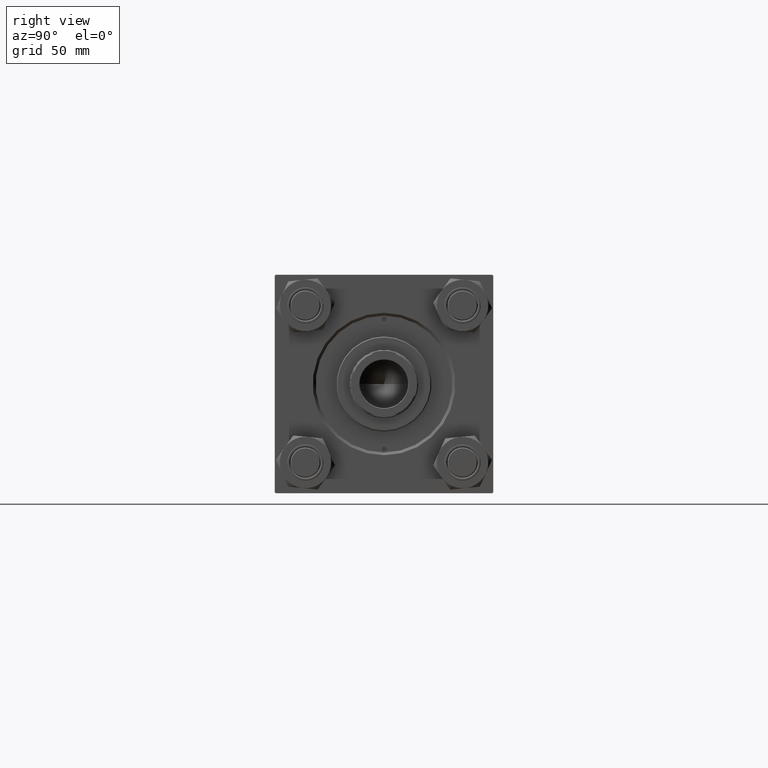
[diagram: clean part render]
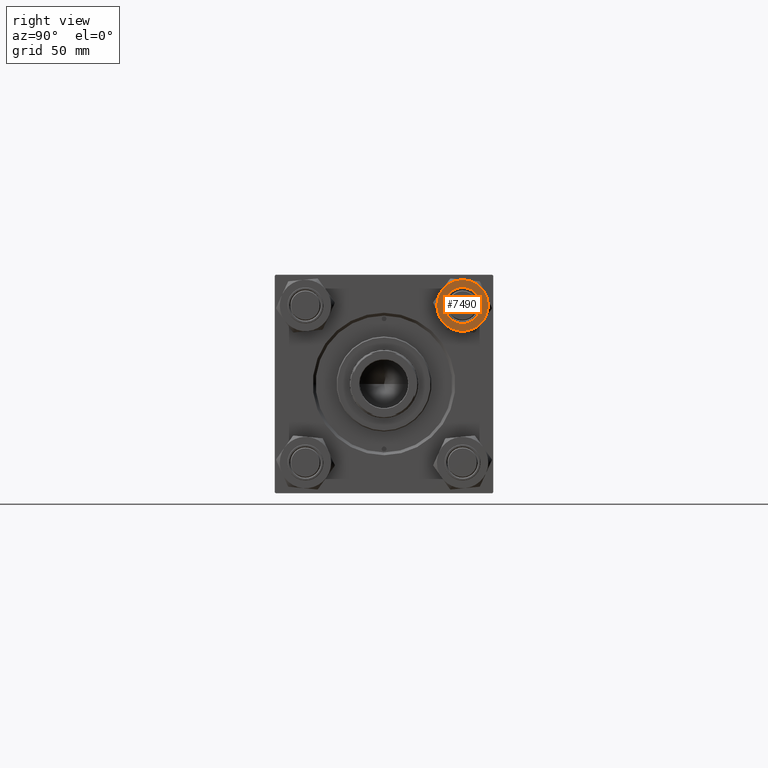
[diagram: same view with one face highlighted and labeled with its STEP entity id]
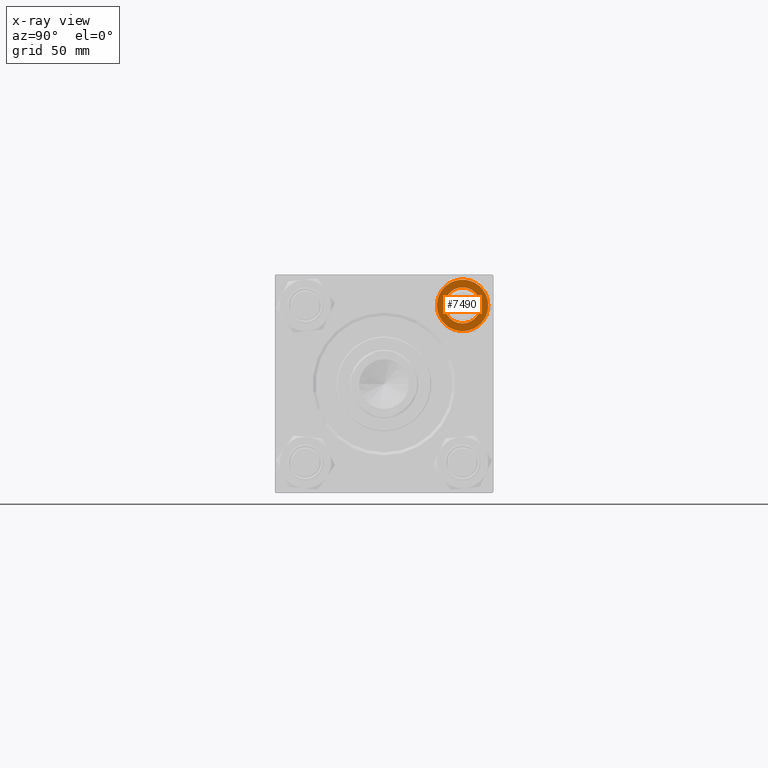
[diagram: x-ray of the same camera — body ghosted, the highlighted face saturated]
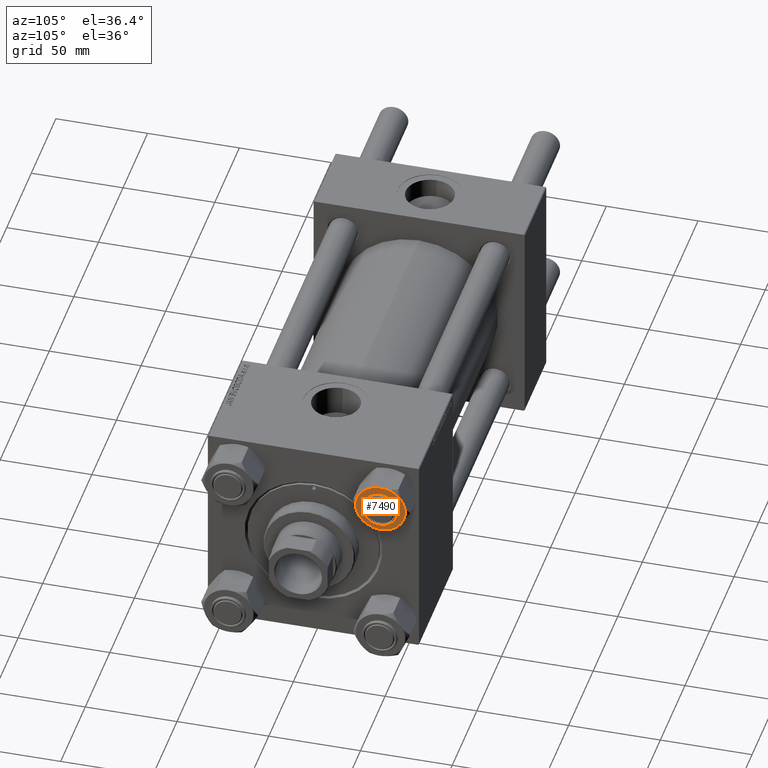
[diagram: same view with one face highlighted and labeled with its STEP entity id]
A machine part, right view. The second image highlights one B-rep face of the part: STEP entity #7490.
The next image is the same camera in x-ray: the body ghosted, the highlighted face saturated — about 0% of this face is hidden behind the body in this view.
A second angle (auxiliary view) of the same face is appended — the face is thin or edge-on in the first view.
In plain terms, the highlighted planar face has unit normal (-1, 0, -0).
Its self-contained STEP definition (entity closure, byte-faithful):
#317 = EDGE_CURVE ( 'NONE', #14946, #14562, #49323, .T. ) ;
#451 = AXIS2_PLACEMENT_3D ( 'NONE', #11594, #46220, #45963 ) ;
#1046 = DIRECTION ( 'NONE',  ( 0.000000000000000000, 0.000000000000000000, 1.000000000000000000 ) ) ;
#1152 = ORIENTED_EDGE ( 'NONE', *, *, #31155, .F. ) ;
#1541 = CIRCLE ( 'NONE', #38969, 9.500000000000000000 ) ;
#2207 = VERTEX_POINT ( 'NONE', #48112 ) ;
#2297 = ORIENTED_EDGE ( 'NONE', *, *, #47593, .F. ) ;
#2893 = AXIS2_PLACEMENT_3D ( 'NONE', #50380, #41987, #4040 ) ;
#3056 = FACE_BOUND ( 'NONE', #49870, .T. ) ;
#4006 = CARTESIAN_POINT ( 'NONE',  ( 13.52731680711293727, 0.000000000000000000, 0.000000000000000000 ) ) ;
#4040 = DIRECTION ( 'NONE',  ( -1.000000000000000000, 0.000000000000000000, 0.000000000000000000 ) ) ;
#4531 = AXIS2_PLACEMENT_3D ( 'NONE', #11369, #26911, #42443 ) ;
#4566 = AXIS2_PLACEMENT_3D ( 'NONE', #26529, #11250, #45365 ) ;
#5164 = VERTEX_POINT ( 'NONE', #13362 ) ;
#6111 = CIRCLE ( 'NONE', #2893, 13.52731680711293549 ) ;
#7490 = ADVANCED_FACE ( 'NONE', ( #3056, #45828 ), #10436, .F. ) ;
#8212 = AXIS2_PLACEMENT_3D ( 'NONE', #18343, #33404, #25489 ) ;
#10100 = VERTEX_POINT ( 'NONE', #35753 ) ;
#10436 = PLANE ( 'NONE',  #30047 ) ;
#11250 = DIRECTION ( 'NONE',  ( 0.000000000000000000, 0.000000000000000000, 1.000000000000000000 ) ) ;
#11300 = ORIENTED_EDGE ( 'NONE', *, *, #40762, .F. ) ;
#11369 = CARTESIAN_POINT ( 'NONE',  ( 0.000000000000000000, 0.000000000000000000, 0.000000000000000000 ) ) ;
#11594 = CARTESIAN_POINT ( 'NONE',  ( 0.000000000000000000, 0.000000000000000000, 0.000000000000000000 ) ) ;
#11861 = ORIENTED_EDGE ( 'NONE', *, *, #34453, .F. ) ;
#13362 = CARTESIAN_POINT ( 'NONE',  ( 9.500000000000000000, 1.163414459189985485E-15, 0.000000000000000000 ) ) ;
#14267 = DIRECTION ( 'NONE',  ( 0.000000000000000000, -0.000000000000000000, -1.000000000000000000 ) ) ;
#14562 = VERTEX_POINT ( 'NONE', #4006 ) ;
#14912 = ORIENTED_EDGE ( 'NONE', *, *, #32838, .T. ) ;
#14946 = VERTEX_POINT ( 'NONE', #23556 ) ;
#15394 = EDGE_CURVE ( 'NONE', #14562, #10100, #23674, .T. ) ;
#15980 = DIRECTION ( 'NONE',  ( 0.000000000000000000, -0.000000000000000000, -1.000000000000000000 ) ) ;
#17055 = VERTEX_POINT ( 'NONE', #42576 ) ;
#17076 = CARTESIAN_POINT ( 'NONE',  ( 0.000000000000000000, 0.000000000000000000, 0.000000000000000000 ) ) ;
#17827 = CARTESIAN_POINT ( 'NONE',  ( 0.000000000000000000, 0.000000000000000000, 0.000000000000000000 ) ) ;
#18343 = CARTESIAN_POINT ( 'NONE',  ( 0.000000000000000000, 0.000000000000000000, 0.000000000000000000 ) ) ;
#18756 = EDGE_CURVE ( 'NONE', #17055, #35805, #44073, .T. ) ;
#18850 = DIRECTION ( 'NONE',  ( 0.000000000000000000, 0.000000000000000000, -1.000000000000000000 ) ) ;
#20310 = EDGE_LOOP ( 'NONE', ( #1152, #11861, #44667, #11300, #34840, #34549, #14912 ) ) ;
#21744 = CARTESIAN_POINT ( 'NONE',  ( -11.71499999999999808, -6.763658403556473964, 0.000000000000000000 ) ) ;
#23472 = CARTESIAN_POINT ( 'NONE',  ( -11.71500000000000341, 6.763658403556464194, 0.000000000000000000 ) ) ;
#23556 = CARTESIAN_POINT ( 'NONE',  ( 11.71499999999999808, 6.763658403556471299, 0.000000000000000000 ) ) ;
#23674 = CIRCLE ( 'NONE', #8212, 13.52731680711293549 ) ;
#23968 = DIRECTION ( 'NONE',  ( 1.000000000000000000, 0.000000000000000000, 0.000000000000000000 ) ) ;
#24123 = DIRECTION ( 'NONE',  ( -1.000000000000000000, 0.000000000000000000, 0.000000000000000000 ) ) ;
#25489 = DIRECTION ( 'NONE',  ( -1.000000000000000000, 0.000000000000000000, 0.000000000000000000 ) ) ;
#26521 = CIRCLE ( 'NONE', #4566, 13.52731680711293372 ) ;
#26529 = CARTESIAN_POINT ( 'NONE',  ( 0.000000000000000000, 0.000000000000000000, 0.000000000000000000 ) ) ;
#26911 = DIRECTION ( 'NONE',  ( 0.000000000000000000, 0.000000000000000000, 1.000000000000000000 ) ) ;
#28087 = CIRCLE ( 'NONE', #4531, 9.500000000000000000 ) ;
#28177 = AXIS2_PLACEMENT_3D ( 'NONE', #30066, #14267, #29805 ) ;
#29223 = VERTEX_POINT ( 'NONE', #36016 ) ;
#29805 = DIRECTION ( 'NONE',  ( -1.000000000000000000, 0.000000000000000000, 0.000000000000000000 ) ) ;
#30047 = AXIS2_PLACEMENT_3D ( 'NONE', #17827, #18850, #37453 ) ;
#30066 = CARTESIAN_POINT ( 'NONE',  ( 0.000000000000000000, 0.000000000000000000, 0.000000000000000000 ) ) ;
#31155 = EDGE_CURVE ( 'NONE', #41388, #2207, #6111, .T. ) ;
#31452 = EDGE_CURVE ( 'NONE', #29223, #5164, #28087, .T. ) ;
#32566 = CARTESIAN_POINT ( 'NONE',  ( 0.000000000000000000, 0.000000000000000000, 0.000000000000000000 ) ) ;
#32838 = EDGE_CURVE ( 'NONE', #14946, #2207, #26521, .T. ) ;
#33404 = DIRECTION ( 'NONE',  ( 0.000000000000000000, -0.000000000000000000, -1.000000000000000000 ) ) ;
#34453 = EDGE_CURVE ( 'NONE', #35805, #41388, #35442, .T. ) ;
#34549 = ORIENTED_EDGE ( 'NONE', *, *, #317, .F. ) ;
#34840 = ORIENTED_EDGE ( 'NONE', *, *, #15394, .F. ) ;
#35351 = CARTESIAN_POINT ( 'NONE',  ( 0.000000000000000000, 0.000000000000000000, 0.000000000000000000 ) ) ;
#35442 = CIRCLE ( 'NONE', #451, 13.52731680711293549 ) ;
#35753 = CARTESIAN_POINT ( 'NONE',  ( 11.71500000000000341, -6.763658403556461529, 0.000000000000000000 ) ) ;
#35805 = VERTEX_POINT ( 'NONE', #21744 ) ;
#36016 = CARTESIAN_POINT ( 'NONE',  ( -9.500000000000000000, 0.000000000000000000, 0.000000000000000000 ) ) ;
#37453 = DIRECTION ( 'NONE',  ( -1.000000000000000000, 0.000000000000000000, -0.000000000000000000 ) ) ;
#38969 = AXIS2_PLACEMENT_3D ( 'NONE', #17076, #1046, #23968 ) ;
#40762 = EDGE_CURVE ( 'NONE', #10100, #17055, #46864, .T. ) ;
#40826 = AXIS2_PLACEMENT_3D ( 'NONE', #35351, #15980, #24123 ) ;
#41388 = VERTEX_POINT ( 'NONE', #23472 ) ;
#41987 = DIRECTION ( 'NONE',  ( 0.000000000000000000, -0.000000000000000000, -1.000000000000000000 ) ) ;
#42443 = DIRECTION ( 'NONE',  ( 1.000000000000000000, 0.000000000000000000, 0.000000000000000000 ) ) ;
#42576 = CARTESIAN_POINT ( 'NONE',  ( 7.511572993685796537E-15, -13.52731680711293372, 0.000000000000000000 ) ) ;
#42806 = AXIS2_PLACEMENT_3D ( 'NONE', #32566, #44744, #48074 ) ;
#44073 = CIRCLE ( 'NONE', #40826, 13.52731680711293549 ) ;
#44667 = ORIENTED_EDGE ( 'NONE', *, *, #18756, .F. ) ;
#44744 = DIRECTION ( 'NONE',  ( 0.000000000000000000, -0.000000000000000000, -1.000000000000000000 ) ) ;
#45365 = DIRECTION ( 'NONE',  ( 1.000000000000000000, 0.000000000000000000, 0.000000000000000000 ) ) ;
#45828 = FACE_OUTER_BOUND ( 'NONE', #20310, .T. ) ;
#45963 = DIRECTION ( 'NONE',  ( -1.000000000000000000, 0.000000000000000000, 0.000000000000000000 ) ) ;
#46220 = DIRECTION ( 'NONE',  ( 0.000000000000000000, -0.000000000000000000, -1.000000000000000000 ) ) ;
#46252 = ORIENTED_EDGE ( 'NONE', *, *, #31452, .F. ) ;
#46864 = CIRCLE ( 'NONE', #42806, 13.52731680711293549 ) ;
#47593 = EDGE_CURVE ( 'NONE', #5164, #29223, #1541, .T. ) ;
#48074 = DIRECTION ( 'NONE',  ( -1.000000000000000000, 0.000000000000000000, 0.000000000000000000 ) ) ;
#48112 = CARTESIAN_POINT ( 'NONE',  ( -4.506943796211480446E-15, 13.52731680711293905, 0.000000000000000000 ) ) ;
#49323 = CIRCLE ( 'NONE', #28177, 13.52731680711293549 ) ;
#49870 = EDGE_LOOP ( 'NONE', ( #46252, #2297 ) ) ;
#50380 = CARTESIAN_POINT ( 'NONE',  ( 0.000000000000000000, 0.000000000000000000, 0.000000000000000000 ) ) ;